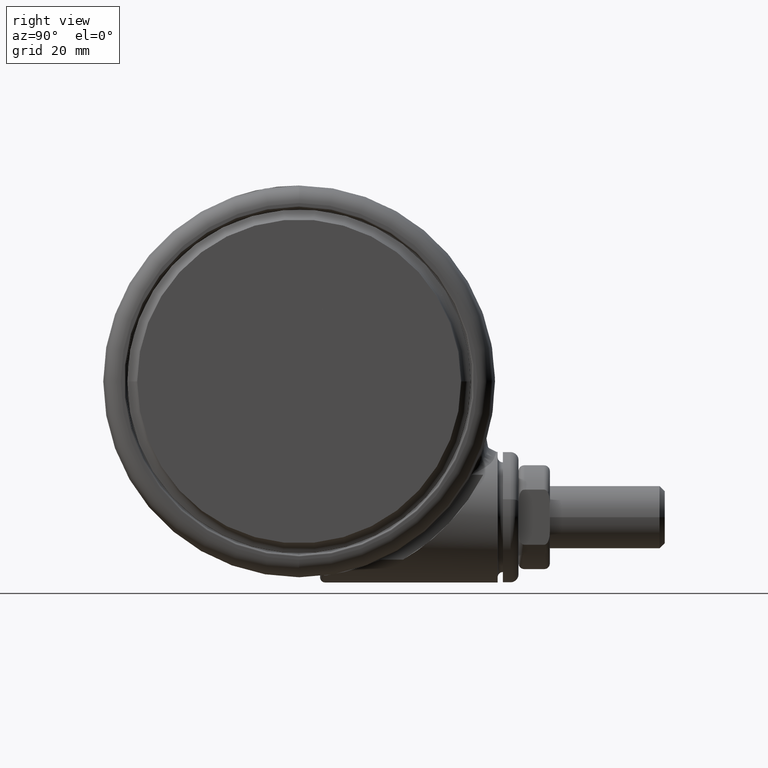
[diagram: clean part render]
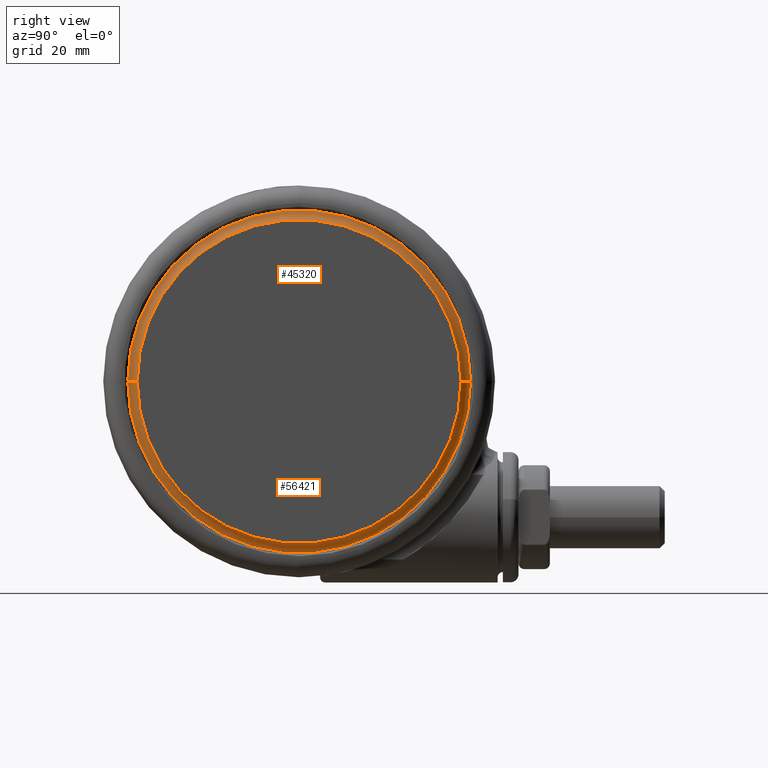
[diagram: same view with one multi-face feature highlighted, each face labeled with its STEP entity id]
A machine part, right view. The highlighted faces form ONE feature: a constant-radius fillet chain: 2 tangent blend faces with common blend radius 2.2 mm. The faces share edges in the B-rep.
Their STEP definitions:
[1] entity #56421 (Torus):
#584 = DIRECTION ( 'NONE',  ( -1.000000000000000000, 1.224646799147351500E-016, 0.0000000000000000000 ) ) ;
#1416 = DIRECTION ( 'NONE',  ( 0.0000000000000000000, 0.0000000000000000000, 1.000000000000000000 ) ) ;
#1867 = CIRCLE ( 'NONE', #26841, 2.200000000000000200 ) ;
#3463 = VERTEX_POINT ( 'NONE', #4412 ) ;
#4412 = CARTESIAN_POINT ( 'NONE',  ( 31.00000000000000000, 0.0000000000000000000, -1.301042606982605300E-015 ) ) ;
#7257 = CIRCLE ( 'NONE', #29799, 2.200000000000000600 ) ;
#9923 = VERTEX_POINT ( 'NONE', #31155 ) ;
#10172 = ORIENTED_EDGE ( 'NONE', *, *, #13951, .T. ) ;
#11080 = DIRECTION ( 'NONE',  ( 0.0000000000000000000, 0.0000000000000000000, 1.000000000000000000 ) ) ;
#11228 = VERTEX_POINT ( 'NONE', #42468 ) ;
#13065 = CARTESIAN_POINT ( 'NONE',  ( 0.0000000000000000000, 0.0000000000000000000, 0.3838283874674035500 ) ) ;
#13951 = EDGE_CURVE ( 'NONE', #11228, #9923, #21557, .T. ) ;
#15063 = EDGE_CURVE ( 'NONE', #39732, #9923, #7257, .T. ) ;
#16176 = CARTESIAN_POINT ( 'NONE',  ( -31.00000000000000000, 3.907598370292685700E-015, -1.301042606982605300E-015 ) ) ;
#16936 = DIRECTION ( 'NONE',  ( 0.0000000000000000000, -1.000000000000000000, 0.0000000000000000000 ) ) ;
#21557 = CIRCLE ( 'NONE', #40341, 32.81592428140525200 ) ;
#26841 = AXIS2_PLACEMENT_3D ( 'NONE', #43825, #16936, #48306 ) ;
#27388 = DIRECTION ( 'NONE',  ( 1.224646799147353200E-016, 1.000000000000000000, -0.0000000000000000000 ) ) ;
#28229 = CARTESIAN_POINT ( 'NONE',  ( 0.0000000000000000000, 0.0000000000000000000, -1.788098396446942800 ) ) ;
#29799 = AXIS2_PLACEMENT_3D ( 'NONE', #54249, #27388, #584 ) ;
#30850 = FACE_OUTER_BOUND ( 'NONE', #50983, .T. ) ;
#31155 = CARTESIAN_POINT ( 'NONE',  ( -32.81592428142002400, 4.018791663230294400E-015, -1.788098396446942800 ) ) ;
#32733 = DIRECTION ( 'NONE',  ( 1.000000000000000000, 0.0000000000000000000, 0.0000000000000000000 ) ) ;
#34596 = AXIS2_PLACEMENT_3D ( 'NONE', #13065, #39942, #44451 ) ;
#37906 = CARTESIAN_POINT ( 'NONE',  ( 0.0000000000000000000, 0.0000000000000000000, -1.301042606982605300E-015 ) ) ;
#39035 = ORIENTED_EDGE ( 'NONE', *, *, #15063, .F. ) ;
#39732 = VERTEX_POINT ( 'NONE', #16176 ) ;
#39942 = DIRECTION ( 'NONE',  ( 0.0000000000000000000, 0.0000000000000000000, 1.000000000000000000 ) ) ;
#40325 = CIRCLE ( 'NONE', #58111, 31.00000000000000000 ) ;
#40341 = AXIS2_PLACEMENT_3D ( 'NONE', #28229, #1416, #32733 ) ;
#41099 = ORIENTED_EDGE ( 'NONE', *, *, #52252, .T. ) ;
#42450 = DIRECTION ( 'NONE',  ( 1.000000000000000000, 0.0000000000000000000, 0.0000000000000000000 ) ) ;
#42468 = CARTESIAN_POINT ( 'NONE',  ( 32.81592428142002400, 0.0000000000000000000, -1.788098396446942800 ) ) ;
#43825 = CARTESIAN_POINT ( 'NONE',  ( 33.16625847233755300, 0.0000000000000000000, 0.3838283874674035500 ) ) ;
#44411 = ORIENTED_EDGE ( 'NONE', *, *, #45911, .F. ) ;
#44451 = DIRECTION ( 'NONE',  ( 1.000000000000000000, 0.0000000000000000000, 0.0000000000000000000 ) ) ;
#45911 = EDGE_CURVE ( 'NONE', #3463, #39732, #40325, .T. ) ;
#48306 = DIRECTION ( 'NONE',  ( 0.0000000000000000000, 0.0000000000000000000, -1.000000000000000000 ) ) ;
#50983 = EDGE_LOOP ( 'NONE', ( #39035, #44411, #41099, #10172 ) ) ;
#52252 = EDGE_CURVE ( 'NONE', #3463, #11228, #1867, .T. ) ;
#53313 = TOROIDAL_SURFACE ( 'NONE', #34596, 33.16625847233755300, 2.200000000000000200 ) ;
#54249 = CARTESIAN_POINT ( 'NONE',  ( -33.16625847233755300, 4.061695227784196800E-015, 0.3838283874674035500 ) ) ;
#56421 = ADVANCED_FACE ( 'NONE', ( #30850 ), #53313, .F. ) ;
#58111 = AXIS2_PLACEMENT_3D ( 'NONE', #37906, #11080, #42450 ) ;
[2] entity #45320 (Torus):
#584 = DIRECTION ( 'NONE',  ( -1.000000000000000000, 1.224646799147351500E-016, 0.0000000000000000000 ) ) ;
#1867 = CIRCLE ( 'NONE', #26841, 2.200000000000000200 ) ;
#3463 = VERTEX_POINT ( 'NONE', #4412 ) ;
#4412 = CARTESIAN_POINT ( 'NONE',  ( 31.00000000000000000, 0.0000000000000000000, -1.301042606982605300E-015 ) ) ;
#5011 = ORIENTED_EDGE ( 'NONE', *, *, #15063, .T. ) ;
#7257 = CIRCLE ( 'NONE', #29799, 2.200000000000000600 ) ;
#7453 = TOROIDAL_SURFACE ( 'NONE', #57360, 33.16625847233755300, 2.200000000000000200 ) ;
#7982 = ORIENTED_EDGE ( 'NONE', *, *, #9098, .T. ) ;
#9098 = EDGE_CURVE ( 'NONE', #9923, #11228, #26893, .T. ) ;
#9923 = VERTEX_POINT ( 'NONE', #31155 ) ;
#10642 = AXIS2_PLACEMENT_3D ( 'NONE', #43622, #16733, #48098 ) ;
#11228 = VERTEX_POINT ( 'NONE', #42468 ) ;
#14644 = DIRECTION ( 'NONE',  ( 0.0000000000000000000, 0.0000000000000000000, 1.000000000000000000 ) ) ;
#15063 = EDGE_CURVE ( 'NONE', #39732, #9923, #7257, .T. ) ;
#16176 = CARTESIAN_POINT ( 'NONE',  ( -31.00000000000000000, 3.907598370292685700E-015, -1.301042606982605300E-015 ) ) ;
#16409 = AXIS2_PLACEMENT_3D ( 'NONE', #45927, #19006, #50389 ) ;
#16733 = DIRECTION ( 'NONE',  ( 0.0000000000000000000, 0.0000000000000000000, 1.000000000000000000 ) ) ;
#16936 = DIRECTION ( 'NONE',  ( 0.0000000000000000000, -1.000000000000000000, 0.0000000000000000000 ) ) ;
#19006 = DIRECTION ( 'NONE',  ( 0.0000000000000000000, 0.0000000000000000000, 1.000000000000000000 ) ) ;
#21045 = EDGE_CURVE ( 'NONE', #39732, #3463, #50110, .T. ) ;
#26841 = AXIS2_PLACEMENT_3D ( 'NONE', #43825, #16936, #48306 ) ;
#26893 = CIRCLE ( 'NONE', #16409, 32.81592428140525200 ) ;
#27388 = DIRECTION ( 'NONE',  ( 1.224646799147353200E-016, 1.000000000000000000, -0.0000000000000000000 ) ) ;
#29799 = AXIS2_PLACEMENT_3D ( 'NONE', #54249, #27388, #584 ) ;
#31155 = CARTESIAN_POINT ( 'NONE',  ( -32.81592428142002400, 4.018791663230294400E-015, -1.788098396446942800 ) ) ;
#31193 = FACE_OUTER_BOUND ( 'NONE', #34866, .T. ) ;
#32814 = CARTESIAN_POINT ( 'NONE',  ( 0.0000000000000000000, 0.0000000000000000000, 0.3838283874674035500 ) ) ;
#33460 = ORIENTED_EDGE ( 'NONE', *, *, #52252, .F. ) ;
#33576 = ORIENTED_EDGE ( 'NONE', *, *, #21045, .F. ) ;
#34866 = EDGE_LOOP ( 'NONE', ( #33576, #5011, #7982, #33460 ) ) ;
#39732 = VERTEX_POINT ( 'NONE', #16176 ) ;
#42468 = CARTESIAN_POINT ( 'NONE',  ( 32.81592428142002400, 0.0000000000000000000, -1.788098396446942800 ) ) ;
#43622 = CARTESIAN_POINT ( 'NONE',  ( 0.0000000000000000000, 0.0000000000000000000, -1.301042606982605300E-015 ) ) ;
#43825 = CARTESIAN_POINT ( 'NONE',  ( 33.16625847233755300, 0.0000000000000000000, 0.3838283874674035500 ) ) ;
#45320 = ADVANCED_FACE ( 'NONE', ( #31193 ), #7453, .F. ) ;
#45927 = CARTESIAN_POINT ( 'NONE',  ( 0.0000000000000000000, 0.0000000000000000000, -1.788098396446942800 ) ) ;
#46406 = DIRECTION ( 'NONE',  ( 1.000000000000000000, 0.0000000000000000000, 0.0000000000000000000 ) ) ;
#48098 = DIRECTION ( 'NONE',  ( 1.000000000000000000, 0.0000000000000000000, 0.0000000000000000000 ) ) ;
#48306 = DIRECTION ( 'NONE',  ( 0.0000000000000000000, 0.0000000000000000000, -1.000000000000000000 ) ) ;
#50110 = CIRCLE ( 'NONE', #10642, 31.00000000000000000 ) ;
#50389 = DIRECTION ( 'NONE',  ( 1.000000000000000000, 0.0000000000000000000, 0.0000000000000000000 ) ) ;
#52252 = EDGE_CURVE ( 'NONE', #3463, #11228, #1867, .T. ) ;
#54249 = CARTESIAN_POINT ( 'NONE',  ( -33.16625847233755300, 4.061695227784196800E-015, 0.3838283874674035500 ) ) ;
#57360 = AXIS2_PLACEMENT_3D ( 'NONE', #32814, #14644, #46406 ) ;